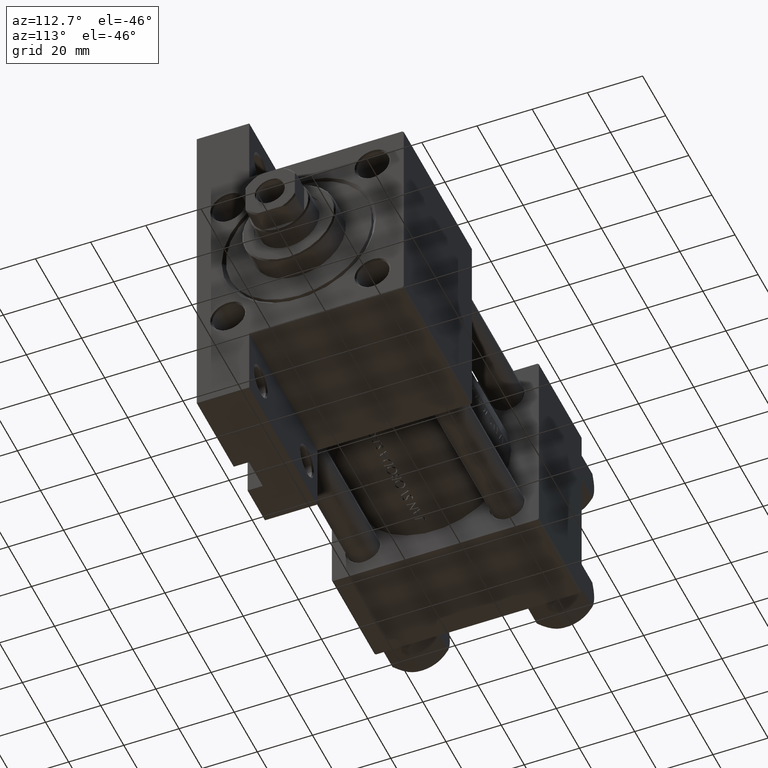
[diagram: clean part render]
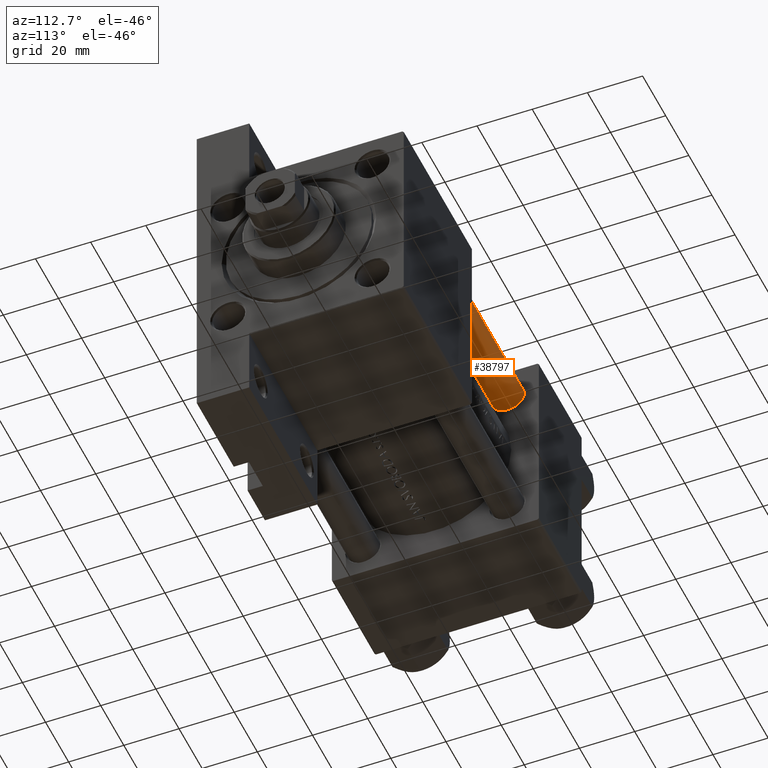
[diagram: same view with one face highlighted and labeled with its STEP entity id]
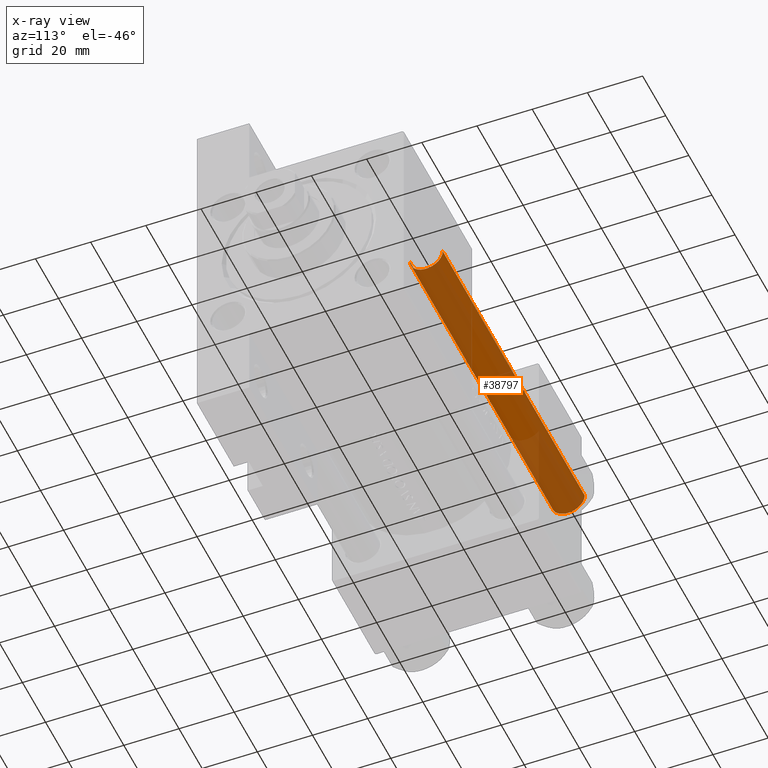
[diagram: x-ray of the same camera — body ghosted, the highlighted face saturated]
A machine part, auxiliary view. The second image highlights one B-rep face of the part: STEP entity #38797.
The next image is the same camera in x-ray: the body ghosted, the highlighted face saturated — about 48% of this face is hidden behind the body in this view.
In plain terms, the highlighted cylindrical surface (edge-blend (fillet) strip) has radius 6 mm, axis along (1, -0, 0).
Its self-contained STEP definition (entity closure, byte-faithful):
#1089 = ORIENTED_EDGE ( 'NONE', *, *, #33209, .F. ) ;
#3988 = CARTESIAN_POINT ( 'NONE',  ( -6.000000000000000888, 0.000000000000000000, 0.4999999999999865663 ) ) ;
#6094 = FACE_OUTER_BOUND ( 'NONE', #7392, .T. ) ;
#7392 = EDGE_LOOP ( 'NONE', ( #16971, #42893, #25170, #1089 ) ) ;
#8439 = CARTESIAN_POINT ( 'NONE',  ( -6.000000000000000888, 0.000000000000000000, 124.0000000000000000 ) ) ;
#9364 = CARTESIAN_POINT ( 'NONE',  ( 6.000000000000000888, 7.347880794884120722E-16, 123.5000000000000426 ) ) ;
#9735 = EDGE_CURVE ( 'NONE', #32572, #13177, #16349, .T. ) ;
#10352 = AXIS2_PLACEMENT_3D ( 'NONE', #42876, #46964, #36119 ) ;
#11529 = EDGE_CURVE ( 'NONE', #30175, #32572, #29614, .T. ) ;
#12052 = DIRECTION ( 'NONE',  ( -0.000000000000000000, -0.000000000000000000, -1.000000000000000000 ) ) ;
#12739 = DIRECTION ( 'NONE',  ( -0.000000000000000000, -0.000000000000000000, -1.000000000000000000 ) ) ;
#12774 = DIRECTION ( 'NONE',  ( -0.000000000000000000, -0.000000000000000000, 1.000000000000000000 ) ) ;
#13177 = VERTEX_POINT ( 'NONE', #38172 ) ;
#13324 = CARTESIAN_POINT ( 'NONE',  ( 0.000000000000000000, 0.000000000000000000, 124.0000000000000000 ) ) ;
#15666 = LINE ( 'NONE', #8439, #24148 ) ;
#16349 = LINE ( 'NONE', #16589, #43408 ) ;
#16589 = CARTESIAN_POINT ( 'NONE',  ( 6.000000000000000888, 7.347880794884120722E-16, 124.0000000000000000 ) ) ;
#16971 = ORIENTED_EDGE ( 'NONE', *, *, #11529, .T. ) ;
#17756 = VERTEX_POINT ( 'NONE', #3988 ) ;
#23451 = CARTESIAN_POINT ( 'NONE',  ( -6.000000000000000888, 0.000000000000000000, 123.5000000000000426 ) ) ;
#24148 = VECTOR ( 'NONE', #12052, 1000.000000000000000 ) ;
#25124 = AXIS2_PLACEMENT_3D ( 'NONE', #13324, #47314, #31906 ) ;
#25170 = ORIENTED_EDGE ( 'NONE', *, *, #35380, .T. ) ;
#27486 = DIRECTION ( 'NONE',  ( 1.000000000000000000, 0.000000000000000000, 0.000000000000000000 ) ) ;
#28194 = CARTESIAN_POINT ( 'NONE',  ( 0.000000000000000000, 0.000000000000000000, 0.4999999999999865663 ) ) ;
#29614 = CIRCLE ( 'NONE', #10352, 6.000000000000000888 ) ;
#30175 = VERTEX_POINT ( 'NONE', #23451 ) ;
#31906 = DIRECTION ( 'NONE',  ( -1.000000000000000000, 0.000000000000000000, 0.000000000000000000 ) ) ;
#32572 = VERTEX_POINT ( 'NONE', #9364 ) ;
#32731 = AXIS2_PLACEMENT_3D ( 'NONE', #28194, #12774, #27486 ) ;
#33209 = EDGE_CURVE ( 'NONE', #30175, #17756, #15666, .T. ) ;
#35380 = EDGE_CURVE ( 'NONE', #13177, #17756, #41949, .T. ) ;
#35982 = CYLINDRICAL_SURFACE ( 'NONE', #25124, 6.000000000000000888 ) ;
#36119 = DIRECTION ( 'NONE',  ( 1.000000000000000000, 0.000000000000000000, 0.000000000000000000 ) ) ;
#38172 = CARTESIAN_POINT ( 'NONE',  ( 6.000000000000000888, 7.347880794884120722E-16, 0.4999999999999865663 ) ) ;
#38797 = ADVANCED_FACE ( 'NONE', ( #6094 ), #35982, .T. ) ;
#41949 = CIRCLE ( 'NONE', #32731, 6.000000000000000888 ) ;
#42876 = CARTESIAN_POINT ( 'NONE',  ( 0.000000000000000000, 0.000000000000000000, 123.5000000000000426 ) ) ;
#42893 = ORIENTED_EDGE ( 'NONE', *, *, #9735, .T. ) ;
#43408 = VECTOR ( 'NONE', #12739, 1000.000000000000000 ) ;
#46964 = DIRECTION ( 'NONE',  ( 0.000000000000000000, 0.000000000000000000, -1.000000000000000000 ) ) ;
#47314 = DIRECTION ( 'NONE',  ( -0.000000000000000000, -0.000000000000000000, -1.000000000000000000 ) ) ;